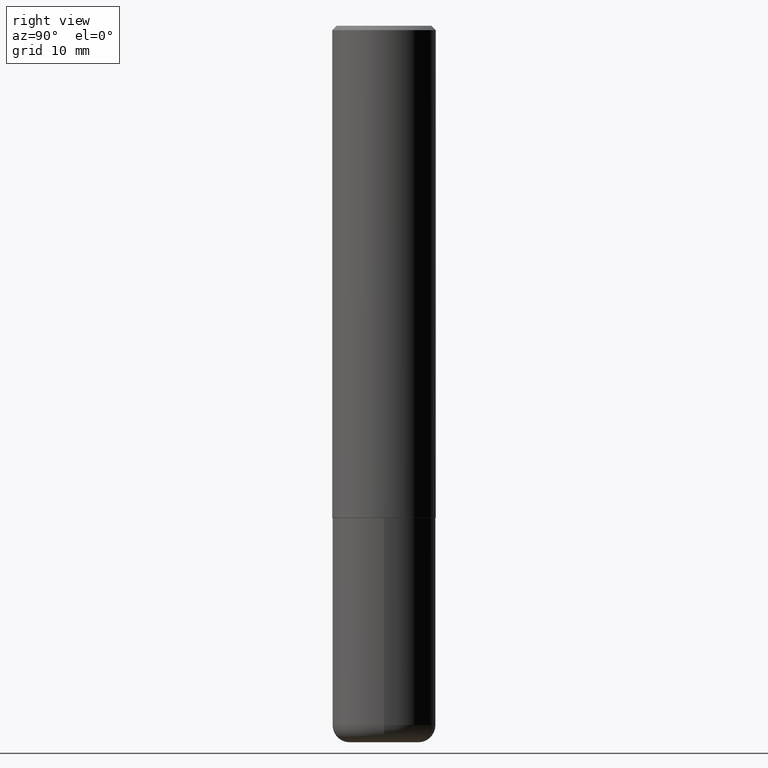
[diagram: clean part render]
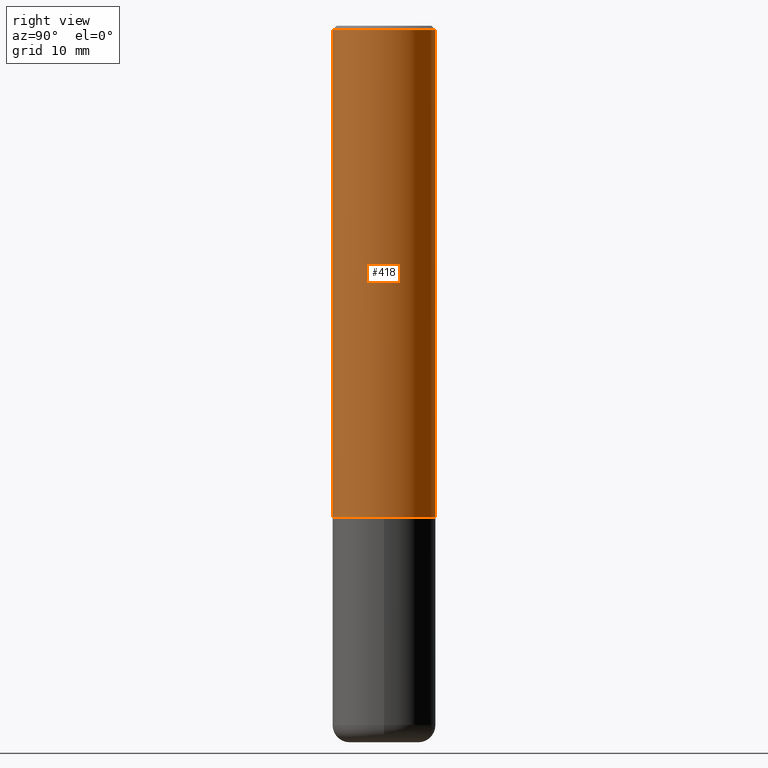
[diagram: same view with one face highlighted and labeled with its STEP entity id]
A machine part, right view. The second image highlights one B-rep face of the part: STEP entity #418.
In plain terms, the highlighted cylindrical surface (partial cylindrical patch) has radius 5.9995 mm, axis along (-0, 0, 1).
Its self-contained STEP definition (entity closure, byte-faithful):
#8 = ORIENTED_EDGE ( 'NONE', *, *, #205, .F. ) ;
#12 = CARTESIAN_POINT ( 'NONE',  ( 5.495819205382747907E-29, -7.816865403143895871E-15, -2.243100000000000094 ) ) ;
#25 = CARTESIAN_POINT ( 'NONE',  ( 1.649375784469496722E-15, 0.2361999999999999655, -0.02000000000000090247 ) ) ;
#42 = CIRCLE ( 'NONE', #272, 0.2362000000000002986 ) ;
#57 = DIRECTION ( 'NONE',  ( -6.982962677686265922E-15, -1.000000000000000000, 3.484849272499619324E-15 ) ) ;
#63 = DIRECTION ( 'NONE',  ( -2.450099953360415403E-29, 3.484849272499618930E-15, 1.000000000000000000 ) ) ;
#69 = EDGE_LOOP ( 'NONE', ( #126, #133, #264, #8 ) ) ;
#87 = CARTESIAN_POINT ( 'NONE',  ( -1.649375784469497117E-15, -0.2362000000000001598, 8.231213981644106002E-16 ) ) ;
#90 = LINE ( 'NONE', #415, #218 ) ;
#110 = CARTESIAN_POINT ( 'NONE',  ( 4.900199906720849654E-31, -6.969698544999262955E-17, -0.02000000000000007674 ) ) ;
#115 = DIRECTION ( 'NONE',  ( -2.450099953360415403E-29, 3.484849272499618930E-15, 1.000000000000000000 ) ) ;
#125 = CARTESIAN_POINT ( 'NONE',  ( -1.620449627073635276E-15, -0.2362000000000001043, -0.01999999999999925449 ) ) ;
#126 = ORIENTED_EDGE ( 'NONE', *, *, #276, .T. ) ;
#133 = ORIENTED_EDGE ( 'NONE', *, *, #355, .T. ) ;
#136 = DIRECTION ( 'NONE',  ( -6.982962677686265922E-15, -1.000000000000000000, 3.469747663417772663E-15 ) ) ;
#143 = AXIS2_PLACEMENT_3D ( 'NONE', #411, #339, #57 ) ;
#150 = VERTEX_POINT ( 'NONE', #334 ) ;
#161 = CIRCLE ( 'NONE', #403, 0.2362000000000000210 ) ;
#205 = EDGE_CURVE ( 'NONE', #150, #320, #335, .T. ) ;
#210 = FACE_OUTER_BOUND ( 'NONE', #69, .T. ) ;
#218 = VECTOR ( 'NONE', #340, 39.37007874015748143 ) ;
#238 = VECTOR ( 'NONE', #242, 39.37007874015748143 ) ;
#242 = DIRECTION ( 'NONE',  ( -2.450099953360415403E-29, 3.484849272499618930E-15, 1.000000000000000000 ) ) ;
#264 = ORIENTED_EDGE ( 'NONE', *, *, #302, .F. ) ;
#272 = AXIS2_PLACEMENT_3D ( 'NONE', #12, #115, #136 ) ;
#276 = EDGE_CURVE ( 'NONE', #150, #314, #42, .T. ) ;
#282 = CARTESIAN_POINT ( 'NONE',  ( 1.678301941865385779E-15, 0.2361999999999924715, -2.243100000000000982 ) ) ;
#302 = EDGE_CURVE ( 'NONE', #320, #385, #161, .T. ) ;
#314 = VERTEX_POINT ( 'NONE', #282 ) ;
#320 = VERTEX_POINT ( 'NONE', #125 ) ;
#334 = CARTESIAN_POINT ( 'NONE',  ( -1.649375784469443080E-15, -0.2362000000000081257, -2.243099999999999206 ) ) ;
#335 = LINE ( 'NONE', #87, #238 ) ;
#339 = DIRECTION ( 'NONE',  ( -2.450099953360415403E-29, 3.484849272499618930E-15, 1.000000000000000000 ) ) ;
#340 = DIRECTION ( 'NONE',  ( -2.450099953360415403E-29, 3.484849272499618930E-15, 1.000000000000000000 ) ) ;
#355 = EDGE_CURVE ( 'NONE', #314, #385, #90, .T. ) ;
#373 = DIRECTION ( 'NONE',  ( -6.982962677686265922E-15, -1.000000000000000000, 3.487819265831411350E-15 ) ) ;
#385 = VERTEX_POINT ( 'NONE', #25 ) ;
#403 = AXIS2_PLACEMENT_3D ( 'NONE', #110, #63, #373 ) ;
#411 = CARTESIAN_POINT ( 'NONE',  ( 0.000000000000000000, 0.000000000000000000, 0.000000000000000000 ) ) ;
#413 = CYLINDRICAL_SURFACE ( 'NONE', #143, 0.2362000000000001598 ) ;
#415 = CARTESIAN_POINT ( 'NONE',  ( 1.678301941865357577E-15, 0.2362000000000001598, -8.231213981644106002E-16 ) ) ;
#418 = ADVANCED_FACE ( 'NONE', ( #210 ), #413, .T. ) ;